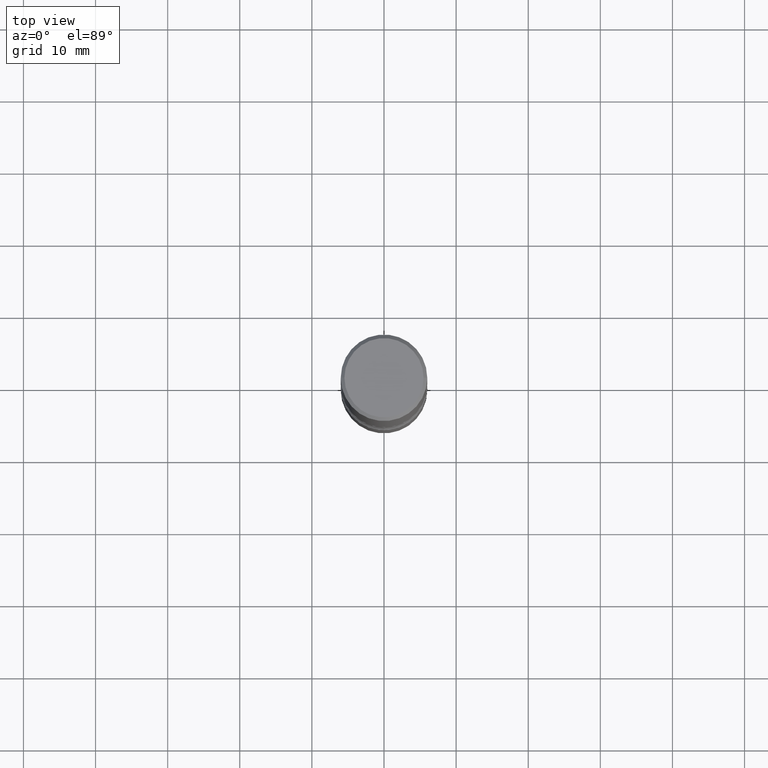
[diagram: clean part render]
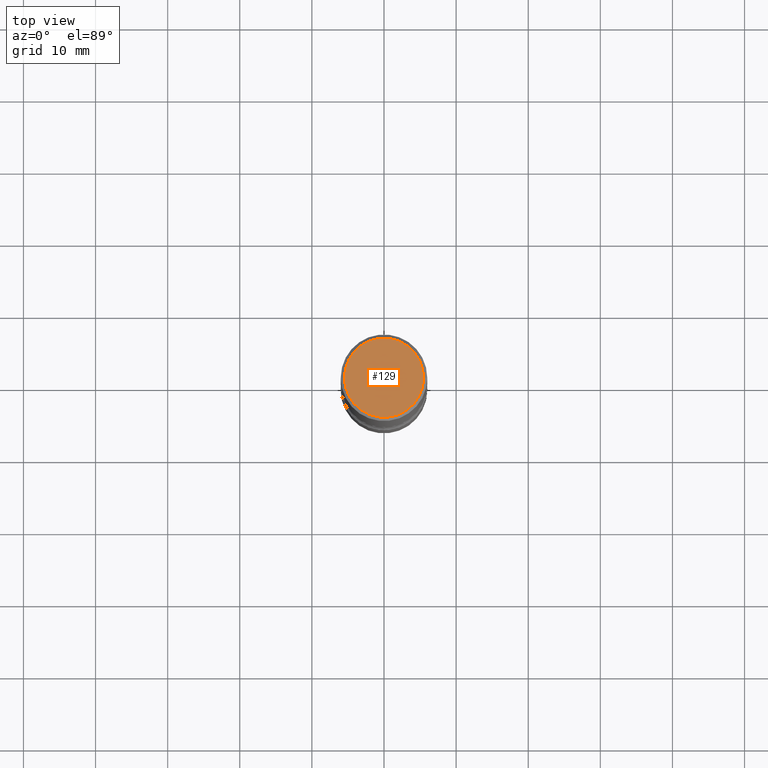
[diagram: same view with one face highlighted and labeled with its STEP entity id]
A machine part, top view. The second image highlights one B-rep face of the part: STEP entity #129.
In plain terms, the highlighted planar face has unit normal (0, -0, -1).
Its self-contained STEP definition (entity closure, byte-faithful):
#19 = AXIS2_PLACEMENT_3D ( 'NONE', #244, #497, #417 ) ;
#23 = FACE_OUTER_BOUND ( 'NONE', #355, .T. ) ;
#29 = DIRECTION ( 'NONE',  ( 2.438088387897960049E-29, -3.491481338843145188E-15, -1.000000000000000000 ) ) ;
#37 = CIRCLE ( 'NONE', #19, 0.2161999999999998368 ) ;
#47 = ORIENTED_EDGE ( 'NONE', *, *, #414, .T. ) ;
#109 = DIRECTION ( 'NONE',  ( -1.000000000000000000, 6.982962677686265922E-15, -4.876176775795935793E-29 ) ) ;
#111 = CARTESIAN_POINT ( 'NONE',  ( 1.509716530915769534E-15, 0.2161999999999998368, -7.527240092128373149E-16 ) ) ;
#129 = ADVANCED_FACE ( 'NONE', ( #23 ), #503, .F. ) ;
#132 = AXIS2_PLACEMENT_3D ( 'NONE', #274, #226, #403 ) ;
#158 = VERTEX_POINT ( 'NONE', #514 ) ;
#173 = CARTESIAN_POINT ( 'NONE',  ( 0.2161999999999998368, -1.586759460484351002E-15, 4.268512490111238857E-18 ) ) ;
#179 = VERTEX_POINT ( 'NONE', #173 ) ;
#221 = CIRCLE ( 'NONE', #132, 0.2161999999999998368 ) ;
#226 = DIRECTION ( 'NONE',  ( -2.445468806185136597E-29, 3.491481338843145583E-15, 1.000000000000000000 ) ) ;
#244 = CARTESIAN_POINT ( 'NONE',  ( -1.043851414335219820E-46, 1.490343170380447200E-32, 4.268512490100411279E-18 ) ) ;
#274 = CARTESIAN_POINT ( 'NONE',  ( -1.043851414335219820E-46, 1.490343170380447200E-32, 4.268512490100411279E-18 ) ) ;
#355 = EDGE_LOOP ( 'NONE', ( #412, #47 ) ) ;
#403 = DIRECTION ( 'NONE',  ( 1.000000000000000000, -6.982962677686266711E-15, 4.876217060660159599E-29 ) ) ;
#412 = ORIENTED_EDGE ( 'NONE', *, *, #434, .T. ) ;
#414 = EDGE_CURVE ( 'NONE', #179, #158, #221, .T. ) ;
#417 = DIRECTION ( 'NONE',  ( 1.000000000000000000, -6.982962677686266711E-15, 4.876217060660159599E-29 ) ) ;
#434 = EDGE_CURVE ( 'NONE', #158, #179, #37, .T. ) ;
#435 = AXIS2_PLACEMENT_3D ( 'NONE', #111, #29, #109 ) ;
#497 = DIRECTION ( 'NONE',  ( -2.445468806185136597E-29, 3.491481338843145583E-15, 1.000000000000000000 ) ) ;
#503 = PLANE ( 'NONE',  #435 ) ;
#514 = CARTESIAN_POINT ( 'NONE',  ( -0.2161999999999998368, 1.544631344304201183E-15, 4.268512490089730842E-18 ) ) ;